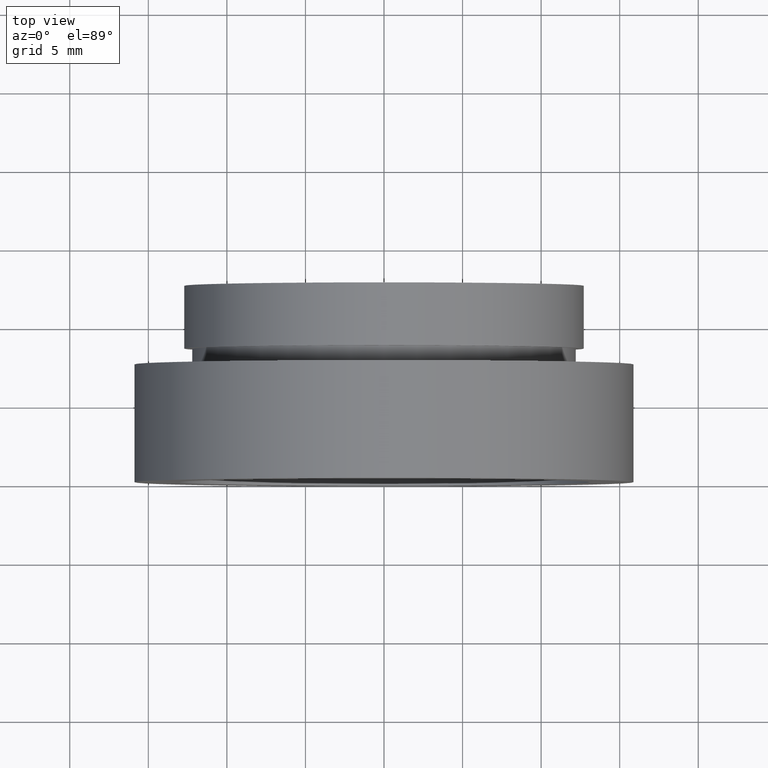
[diagram: clean part render]
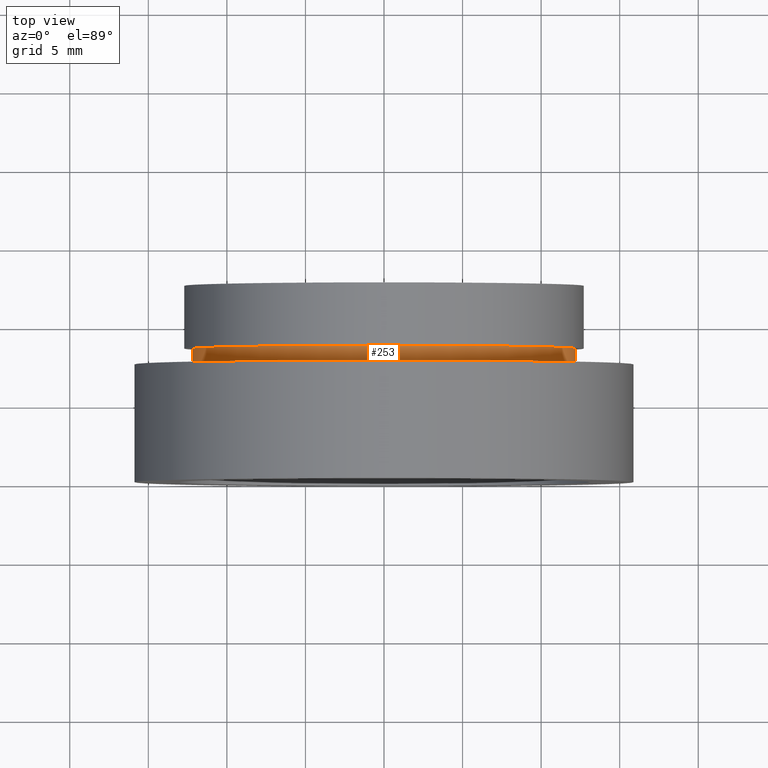
[diagram: same view with one face highlighted and labeled with its STEP entity id]
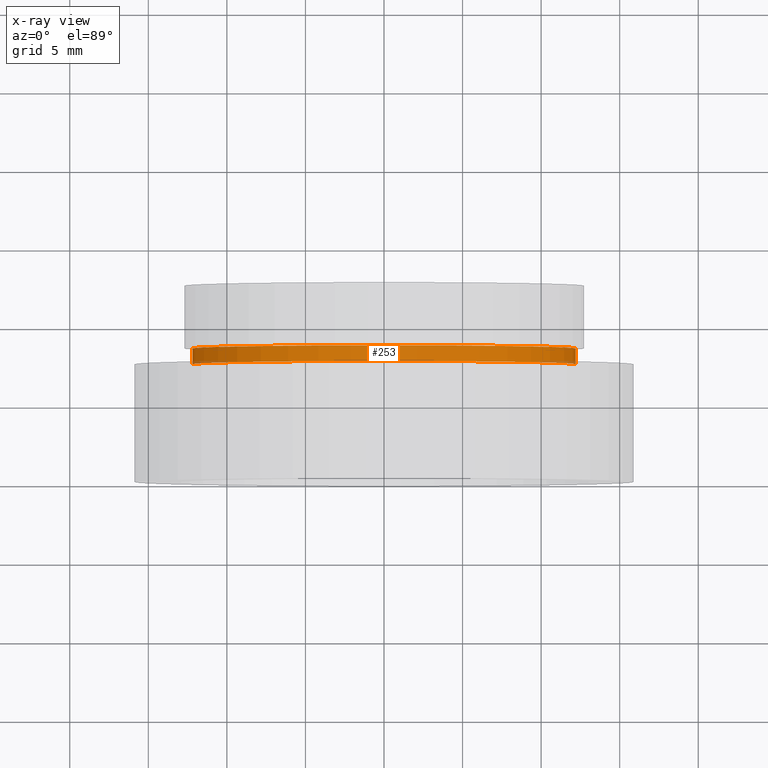
[diagram: x-ray of the same camera — body ghosted, the highlighted face saturated]
A machine part, top view. The second image highlights one B-rep face of the part: STEP entity #253.
The next image is the same camera in x-ray: the body ghosted, the highlighted face saturated — about 2% of this face is hidden behind the body in this view.
In plain terms, the highlighted cylindrical surface (partial cylindrical patch) has radius 12.2 mm, axis along (-0, 1, -0).
Its self-contained STEP definition (entity closure, byte-faithful):
#11 = DIRECTION ( 'NONE',  ( -1.224646799147351000E-016, 1.000000000000000000, -0.0000000000000000000 ) ) ;
#29 = VERTEX_POINT ( 'NONE', #447 ) ;
#50 = CIRCLE ( 'NONE', #511, 12.19999999999999900 ) ;
#69 = CARTESIAN_POINT ( 'NONE',  ( 12.20000000000000100, 7.500000000000000000, 1.494069094959770900E-015 ) ) ;
#78 = AXIS2_PLACEMENT_3D ( 'NONE', #581, #502, #369 ) ;
#93 = DIRECTION ( 'NONE',  ( -1.000000000000000000, -1.421904488505579700E-016, 0.0000000000000000000 ) ) ;
#144 = CARTESIAN_POINT ( 'NONE',  ( -12.19999999999999800, 7.499999999999996400, 0.0000000000000000000 ) ) ;
#159 = EDGE_CURVE ( 'NONE', #467, #29, #617, .T. ) ;
#162 = CARTESIAN_POINT ( 'NONE',  ( 1.149455719078122700E-015, 7.499999999999998200, 0.0000000000000000000 ) ) ;
#163 = CIRCLE ( 'NONE', #433, 12.19999999999999900 ) ;
#173 = ORIENTED_EDGE ( 'NONE', *, *, #376, .F. ) ;
#204 = EDGE_CURVE ( 'NONE', #467, #391, #50, .T. ) ;
#245 = CARTESIAN_POINT ( 'NONE',  ( 1.026991039163387700E-015, 8.499999999999998200, 0.0000000000000000000 ) ) ;
#253 = ADVANCED_FACE ( 'NONE', ( #487 ), #471, .T. ) ;
#286 = VECTOR ( 'NONE', #298, 1000.000000000000000 ) ;
#298 = DIRECTION ( 'NONE',  ( -1.224646799147351000E-016, 1.000000000000000000, -0.0000000000000000000 ) ) ;
#340 = CARTESIAN_POINT ( 'NONE',  ( 12.20000000000000100, 8.500000000000000000, 1.494069094959770900E-015 ) ) ;
#353 = CARTESIAN_POINT ( 'NONE',  ( 12.19999999999999900, 16.88601823708207700, 1.494069094959770900E-015 ) ) ;
#369 = DIRECTION ( 'NONE',  ( -1.000000000000000000, 0.0000000000000000000, 0.0000000000000000000 ) ) ;
#376 = EDGE_CURVE ( 'NONE', #29, #466, #163, .T. ) ;
#377 = LINE ( 'NONE', #353, #286 ) ;
#391 = VERTEX_POINT ( 'NONE', #69 ) ;
#407 = ORIENTED_EDGE ( 'NONE', *, *, #524, .T. ) ;
#416 = DIRECTION ( 'NONE',  ( -1.224646799147351000E-016, 1.000000000000000000, -0.0000000000000000000 ) ) ;
#423 = ORIENTED_EDGE ( 'NONE', *, *, #204, .T. ) ;
#433 = AXIS2_PLACEMENT_3D ( 'NONE', #245, #416, #93 ) ;
#443 = CARTESIAN_POINT ( 'NONE',  ( -12.19999999999999900, 16.88601823708207700, 0.0000000000000000000 ) ) ;
#447 = CARTESIAN_POINT ( 'NONE',  ( -12.19999999999999800, 8.499999999999996400, 0.0000000000000000000 ) ) ;
#463 = ORIENTED_EDGE ( 'NONE', *, *, #159, .F. ) ;
#466 = VERTEX_POINT ( 'NONE', #340 ) ;
#467 = VERTEX_POINT ( 'NONE', #144 ) ;
#471 = CYLINDRICAL_SURFACE ( 'NONE', #78, 12.19999999999999900 ) ;
#487 = FACE_OUTER_BOUND ( 'NONE', #550, .T. ) ;
#491 = DIRECTION ( 'NONE',  ( -1.224646799147351000E-016, 1.000000000000000000, -0.0000000000000000000 ) ) ;
#502 = DIRECTION ( 'NONE',  ( -1.224646799147351000E-016, 1.000000000000000000, -0.0000000000000000000 ) ) ;
#511 = AXIS2_PLACEMENT_3D ( 'NONE', #162, #491, #542 ) ;
#524 = EDGE_CURVE ( 'NONE', #391, #466, #377, .T. ) ;
#542 = DIRECTION ( 'NONE',  ( -1.000000000000000000, -1.421904488505579700E-016, 0.0000000000000000000 ) ) ;
#550 = EDGE_LOOP ( 'NONE', ( #423, #407, #173, #463 ) ) ;
#581 = CARTESIAN_POINT ( 'NONE',  ( 0.0000000000000000000, 16.88601823708207700, 0.0000000000000000000 ) ) ;
#605 = VECTOR ( 'NONE', #11, 1000.000000000000000 ) ;
#617 = LINE ( 'NONE', #443, #605 ) ;